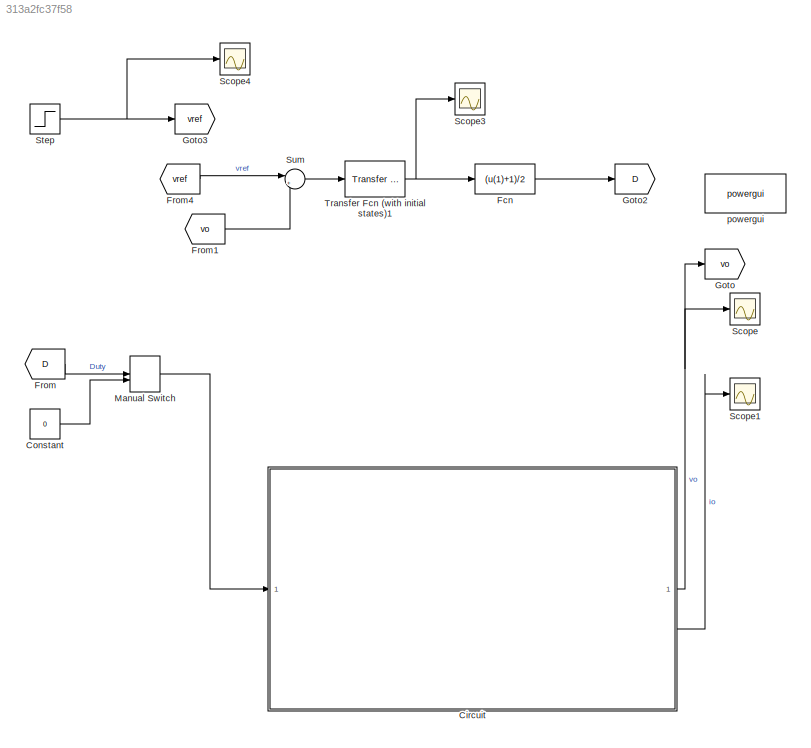
MODEL slx_313a2fc37f58
KIND model
CONFIG AbsTol = auto
CONFIG EnableMultiTasking = off
CONFIG FixedStep = auto
CONFIG MaxStep = auto
CONFIG MinStep = auto
CONFIG RelTol = 1e-3
CONFIG SampleTimeConstraint = Unconstrained
CONFIG SolverName = VariableStepAuto
CONFIG StartTime = 0.0
CONFIG StopTime = Tend
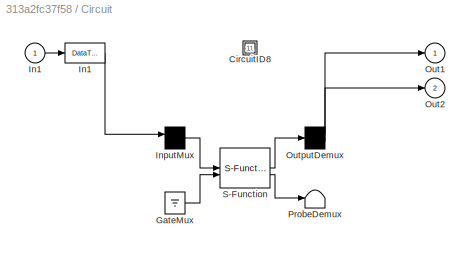
BLOCK [SubSystem] Circuit
  CopyFcn = plecs('sl', 203);
  DeleteFcn = plecs('sl', 205);
  DestroyFcn = plecs('sl', 207);
  ErrorFcn = plerrorfcn
  InitFcn = plecs('sl', 214);
  LoadFcn = plecs('sl', 200);
  NameChangeFcn = plecs('sl', 210);
  OpenFcn = plecs('sl', 202);
  PostSaveFcn = plecs('sl', 201);
  PreCopyFcn = plecs('sl', 216);
  PreSaveFcn = plecs('sl', 211);
  ShowPortLabels = FromPortBlockName
  StartFcn = plecs('sl', 208);
  StopFcn = plecs('sl', 209);
  UndoDeleteFcn = plecs('sl', 206);
BLOCK [SubSystem] Circuit/ CircuitID8 
BLOCK [Ground] Circuit/ GateMux 
BLOCK [DataTypeConversion] Circuit/ In1 
BLOCK [Mux] Circuit/ InputMux 
  Inputs = [ 1 ]
BLOCK [Demux] Circuit/ OutputDemux 
  Outputs = [ 1 1 ]
BLOCK [Terminator] Circuit/ ProbeDemux 
BLOCK [S-Function] Circuit/ S-Function 
  EnableBusSupport = off
  FunctionName = plecs
  SFcnIsStateOwnerBlock = off
  SFunctionDeploymentMode = off
BLOCK [Inport] Circuit/In1
  PortDimensions = 1
BLOCK [Outport] Circuit/Out1
  PortDimensions = 1
BLOCK [Outport] Circuit/Out2
  Port = 2
  PortDimensions = 1
BLOCK [Constant] Constant
  Value = 0
BLOCK [Fcn] Fcn
  Expr = (u(1)+1)/2
BLOCK [From] From
  GotoTag = D
BLOCK [From] From1
  GotoTag = vo
BLOCK [From] From4
  GotoTag = vref
BLOCK [Goto] Goto
  GotoTag = vo
BLOCK [Goto] Goto2
  GotoTag = D
BLOCK [Goto] Goto3
  GotoTag = vref
BLOCK [ManualSwitch] Manual Switch
BLOCK [Scope] Scope
  Floating = off
  NumInputPorts = 1
  ScopeSpecificationString = Simulink.scopes.TimeScopeBlockCfg('CurrentConfiguration', extmgr.ConfigurationSet(extmgr.Configuration('Core','General UI',true),extmgr.Configuration('Core','Source UI',true),extmgr.Configuration('Sources','WiredSimulink',true,'DataLoggingVariableName','ScopeData1'),extmgr.Configuration('Visuals','Time Domain',true,'SerializedDisplays',{struct('MinYLimReal','-14.53791','MaxYLimReal','130.84122','Y...<+1451ch>
BLOCK [Scope] Scope1
  Floating = off
  NumInputPorts = 1
  ScopeSpecificationString = Simulink.scopes.TimeScopeBlockCfg('CurrentConfiguration', extmgr.ConfigurationSet(extmgr.Configuration('Core','General UI',true),extmgr.Configuration('Core','Source UI',true),extmgr.Configuration('Sources','WiredSimulink',true,'DataLoggingVariableName','ScopeData1'),extmgr.Configuration('Visuals','Time Domain',true,'SerializedDisplays',{struct('MinYLimReal','-0.62221','MaxYLimReal','5.59782','YLab...<+1405ch>
BLOCK [Scope] Scope3
  Floating = off
  NumInputPorts = 1
  ScopeSpecificationString = Simulink.scopes.TimeScopeBlockCfg('CurrentConfiguration', extmgr.ConfigurationSet(extmgr.Configuration('Core','General UI',true),extmgr.Configuration('Core','Source UI',true),extmgr.Configuration('Sources','WiredSimulink',true,'DataLoggingVariableName','ScopeData2'),extmgr.Configuration('Visuals','Time Domain',true,'SerializedDisplays',{struct('MinYLimReal','-1.39546','MaxYLimReal','0.62715','YLab...<+1467ch>
BLOCK [Scope] Scope4
  Floating = off
  NumInputPorts = 1
  ScopeSpecificationString = Simulink.scopes.TimeScopeBlockCfg('CurrentConfiguration', extmgr.ConfigurationSet(extmgr.Configuration('Core','General UI',true),extmgr.Configuration('Core','Source UI',true),extmgr.Configuration('Sources','WiredSimulink',true,'DataLoggingVariableName','ScopeData3'),extmgr.Configuration('Visuals','Time Domain',true,'SerializedDisplays',{struct('MinYLimReal','37.5','MaxYLimReal','62.5','YLabelReal'...<+1337ch>
BLOCK [Step] Step
  After = Vref2
  Before = Vref1
  SampleTime = Tsamp
  Time = Ttrig
BLOCK [Sum] Sum
  Inputs = |+-
BLOCK [Reference] Transfer Fcn (with initial states)1  REF=simulink_extras/Additional
Linear/Transfer Fcn
(with initial states)
  SourceBlock = simulink_extras/Additional\nLinear/Transfer Fcn\n(with initial states)
  SourceType = Transfer Function with Initial States
BLOCK [Reference] powergui  REF=sps_lib/powergui
  LibrarySourceBlock = sps_lib/powergui
  Priority = 1
  SourceBlock = sps_lib/powergui
  SourceType = PSB option menu block
NET Circuit:1 -> Goto:1, Scope:1
LINE Circuit:2 -> Scope1:1
LINE Constant:1 -> Manual Switch:2
LINE Fcn:1 -> Goto2:1
LINE From1:1 -> Sum:2
LINE From4:1 -> Sum:1
LINE From:1 -> Manual Switch:1
LINE Manual Switch:1 -> Circuit:1
NET Step:1 -> Goto3:1, Scope4:1
LINE Sum:1 -> Transfer Fcn (with initial states)1:1
NET Transfer Fcn (with initial states)1:1 -> Fcn:1, Scope3:1
note: NET lines group one-source signal fan-out (src -> all destinations, sorted); 1:1 wires keep LINE
